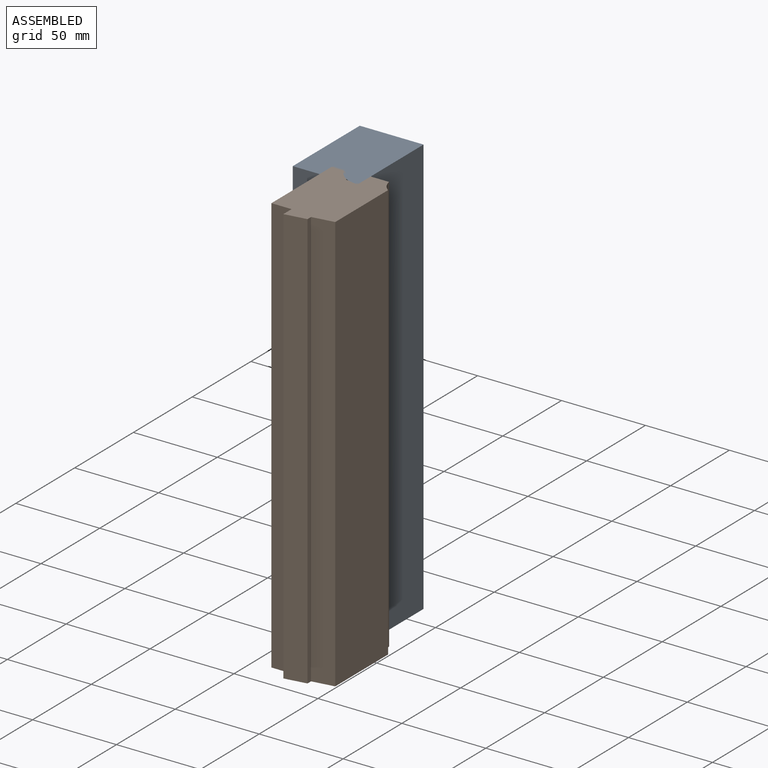
[diagram: assembled view]
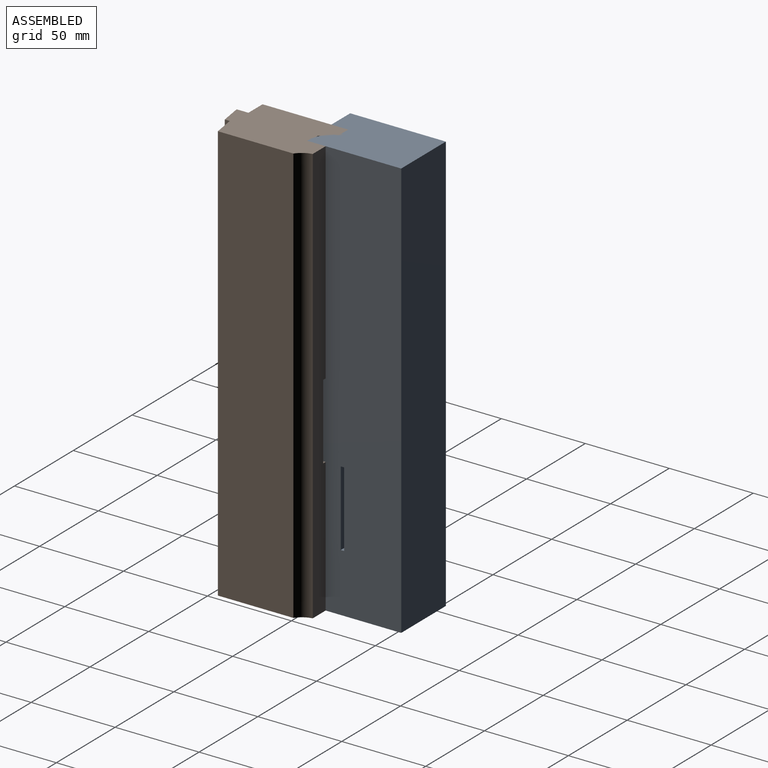
[diagram: assembled view, second angle]
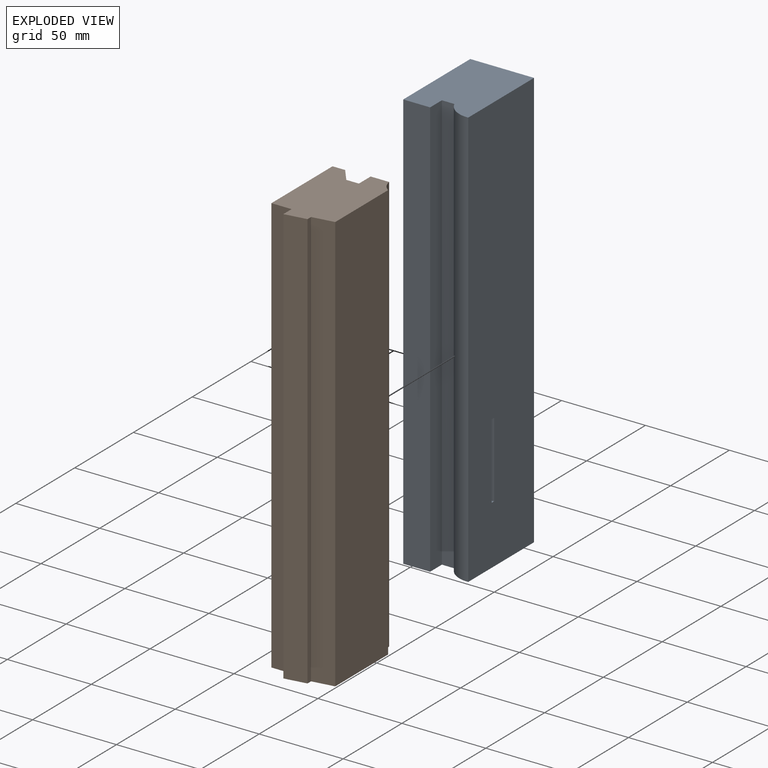
[diagram: exploded view]
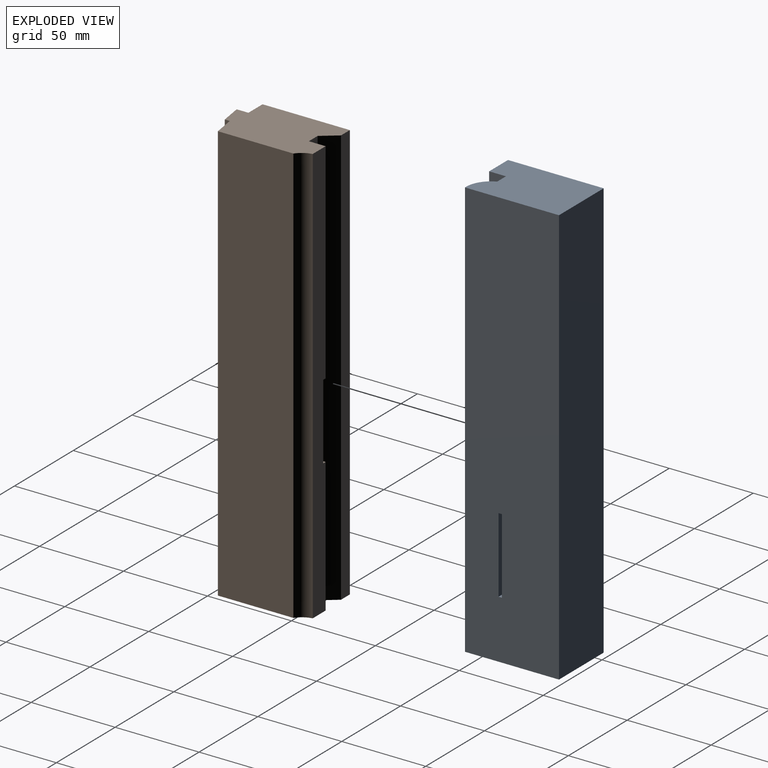
[diagram: exploded view, second angle]
FCSTD DOCUMENT  (FreeCAD 2022.709R28846 (Git))
Label: assembly
License: All rights reserved
LicenseURL: http://en.wikipedia.org/wiki/All_rights_reserved
objects: Part::FeaturePython×15, App::FeaturePython×15, App::Link×3, App::Part×2
note: 14 computed .brp shape members not serialized (recipe doc carries the construction recipe); baked Part::Feature solids carry a one-line shape summary decoded from their .brp
EXTERNAL_REF file=fensterrahmen_hinternute.FCStd obj=Body
EXTERNAL_REF file=blendrahmen_hinternute.FCStd obj=Body
EXTERNAL_REF file=fischband_assembly.FCStd obj=Assembly

FEATURE [App::Link] Link001  label="fensterrahmen"
  AutoLinkLabel = true
  AutoPlacement = true
  LinkPlacement = pos=(16,11,-3.85e-14) rot=(0,0,1;0rad)
  LinkedObject = -> <external fensterrahmen_hinternute.FCStd>#Body
  Placement = pos=(16,11,-3.85e-14) rot=(0,0,1;0rad)
  ShowElement = false
  SyncGroupVisibility = false
  TreeRank = 2
  _LinkVersion = 1
FEATURE [App::Link] Link  label="blendrahmen"
  AutoLinkLabel = true
  AutoPlacement = true
  LinkedObject = -> <external blendrahmen_hinternute.FCStd>#Body
  ShowElement = false
  SyncGroupVisibility = false
  TreeRank = 3
  _LinkVersion = 1
FEATURE [App::Link] Link002  label="Fischband"
  AutoLinkLabel = true
  AutoPlacement = true
  LinkPlacement = pos=(88.5,-0.5,125) rot=(0,1,0;3.14159rad)
  LinkedObject = -> <external fischband_assembly.FCStd>#Assembly
  Placement = pos=(88.5,-0.5,125) rot=(0,1,0;3.14159rad)
  ShowElement = false
  SyncGroupVisibility = false
  TreeRank = 23
  _LinkVersion = 1
FEATURE [Part::FeaturePython] Parts  # WARN: FeaturePython — macro-defined, semantics opaque (R4)
  Group = -> [Link,Link002,Link001]
  GroupMode = 0
  TreeRank = 0
  _LinkVersion = 1
FEATURE [App::FeaturePython] ElementLink  label="_Element007"  # WARN: FeaturePython — macro-defined, semantics opaque (R4)
  LinkTransform = true
  TreeRank = 87
  _LinkVersion = 1
FEATURE [App::Part] Part001
  ClaimAllChildren = false
  ExportMode = 1
  Origin = -> Origin001
  TreeRank = 123
  _GroupVersion = 1
FEATURE [App::Part] Part
  ClaimAllChildren = false
  ExportMode = 1
  Group = -> [Part001]
  Origin = -> Origin
  TreeRank = 118
  _ExportChildren = -> [Part001]
  _GroupVersion = 1
FEATURE [Part::FeaturePython] Assembly  # WARN: FeaturePython — macro-defined, semantics opaque (R4)
  AutoRelax = true
  BuildShape = 0
  Freeze = false
  Group = -> [Constraints,Elements,Parts]
  TreeRank = 0
  Verbose = false
  _LinkVersion = 1
  _SolverType = 1
  _Version = 1
FEATURE [App::FeaturePython] Constraints  # WARN: FeaturePython — macro-defined, semantics opaque (R4)
  Group = -> [Constraint003,Constraint004,Constraint,Constraint005]
  TreeRank = 0
  _LinkVersion = 1
  _Version = 1
FEATURE [App::FeaturePython] Elements  # WARN: FeaturePython — macro-defined, semantics opaque (R4)
  Group = -> [_Element008,_Element009,_Element010,_Element011,_Element012,_Element013,_Element015,_Element018,_Element019,_Element021,_Element,_Element022,_Element023]
  TreeRank = 0
  _LinkVersion = 1
FEATURE [Part::FeaturePython] _Element008  # link proxy (typed FeaturePython)
  Detach = false
  LinkTransform = true
  LinkedObject = -> Link [Pocket.Edge31]
  TreeRank = 41
  _LinkVersion = 1
  _Parent = -> Elements
FEATURE [Part::FeaturePython] _Element009  # link proxy (typed FeaturePython)
  Detach = false
  LinkTransform = true
  LinkedObject = -> Link002 [1.$Element002.]
  TreeRank = 43
  _LinkVersion = 1
  _Parent = -> Elements
FEATURE [Part::FeaturePython] _Element010  # link proxy (typed FeaturePython)
  Detach = false
  LinkTransform = true
  LinkedObject = -> Link [Pocket.Face14]
  TreeRank = 52
  _LinkVersion = 1
  _Parent = -> Elements
FEATURE [Part::FeaturePython] _Element011  # link proxy (typed FeaturePython)
  Detach = false
  LinkTransform = true
  LinkedObject = -> Link002 [1.$Element003.]
  TreeRank = 53
  _LinkVersion = 1
  _Parent = -> Elements
FEATURE [Part::FeaturePython] _Element012  # link proxy (typed FeaturePython)
  Detach = false
  LinkTransform = true
  LinkedObject = -> Link [Pocket.Edge28]
  TreeRank = 61
  _LinkVersion = 1
  _Parent = -> Elements
FEATURE [Part::FeaturePython] _Element013  # link proxy (typed FeaturePython)
  Detach = false
  LinkTransform = true
  LinkedObject = -> Link002 [1.$Element004.]
  TreeRank = 62
  _LinkVersion = 1
  _Parent = -> Elements
FEATURE [Part::FeaturePython] _Element015  # link proxy (typed FeaturePython)
  Detach = false
  LinkTransform = true
  LinkedObject = -> Link [Pocket.Edge21]
  TreeRank = 68
  _LinkVersion = 1
  _Parent = -> Elements
FEATURE [App::FeaturePython] Constraint003  label="PlaneCoincident"  # WARN: FeaturePython — macro-defined, semantics opaque (R4)
  Angle = 0
  AnglePitch = 0
  AngleRoll = 0
  Cascade = false
  Disabled = false
  Group = -> [ElementLink003,ElementLink004]
  LockAngle = false
  Multiply = false
  OffsetX = 0
  OffsetY = 0
  TreeRank = 75
  _ConstraintType = 35
  _LinkVersion = 1
  _Parent = -> Constraints
FEATURE [App::FeaturePython] ElementLink003  label="_Element010"  # link proxy (typed FeaturePython)
  LinkTransform = true
  LinkedObject = -> _Element010
  TreeRank = 76
  _LinkVersion = 1
  _Parent = -> Constraint003
FEATURE [App::FeaturePython] ElementLink004  label="_Element011"  # link proxy (typed FeaturePython)
  LinkTransform = true
  LinkedObject = -> _Element011
  TreeRank = 77
  _LinkVersion = 1
  _Parent = -> Constraint003
FEATURE [App::FeaturePython] Constraint004  label="AxialAlignment"  # WARN: FeaturePython — macro-defined, semantics opaque (R4)
  Angle = 0
  AnglePitch = 0
  AngleRoll = 0
  Disabled = false
  Group = -> [ElementLink005,ElementLink006]
  LockAngle = false
  Multiply = false
  TreeRank = 78
  _ConstraintType = 36
  _LinkVersion = 1
  _Parent = -> Constraints
FEATURE [App::FeaturePython] ElementLink005  label="_Element018"  # link proxy (typed FeaturePython)
  LinkTransform = true
  LinkedObject = -> _Element018
  TreeRank = 79
  _LinkVersion = 1
  _Parent = -> Constraint004
FEATURE [Part::FeaturePython] _Element018  # link proxy (typed FeaturePython)
  Detach = false
  LinkTransform = true
  LinkedObject = -> Link [Pocket.Edge27]
  TreeRank = 80
  _LinkVersion = 1
  _Parent = -> Elements
FEATURE [App::FeaturePython] ElementLink006  label="_Element019"  # link proxy (typed FeaturePython)
  LinkTransform = true
  LinkedObject = -> _Element019
  TreeRank = 81
  _LinkVersion = 1
  _Parent = -> Constraint004
FEATURE [Part::FeaturePython] _Element019  # link proxy (typed FeaturePython)
  Detach = false
  LinkTransform = true
  LinkedObject = -> Link002 [1.$Element006.]
  TreeRank = 82
  _LinkVersion = 1
  _Parent = -> Elements
FEATURE [Part::FeaturePython] _Element021  # link proxy (typed FeaturePython)
  Detach = false
  LinkTransform = true
  LinkedObject = -> Link002 [1.$Element007.]
  TreeRank = 95
  _LinkVersion = 1
  _Parent = -> Elements
FEATURE [App::FeaturePython] Constraint  label="PlaneCoincident001"  # WARN: FeaturePython — macro-defined, semantics opaque (R4)
  Angle = 0
  AnglePitch = 0
  AngleRoll = 0
  Cascade = false
  Disabled = false
  Group = -> [ElementLink007,ElementLink008]
  LockAngle = false
  Multiply = false
  OffsetX = 0
  OffsetY = 0
  TreeRank = 101
  _ConstraintType = 35
  _LinkVersion = 0
  _Parent = -> Constraints
FEATURE [App::FeaturePython] ElementLink007  label="_Element"  # link proxy (typed FeaturePython)
  LinkTransform = true
  LinkedObject = -> _Element
  TreeRank = 97
  _LinkVersion = 0
  _Parent = -> Constraint
FEATURE [Part::FeaturePython] _Element  # link proxy (typed FeaturePython)
  Detach = false
  LinkTransform = true
  LinkedObject = -> Link002 [1.$Element001.]
  TreeRank = 102
  _LinkVersion = 0
  _Parent = -> Elements
FEATURE [App::FeaturePython] ElementLink008  label="_Element022"  # link proxy (typed FeaturePython)
  LinkTransform = true
  LinkedObject = -> _Element022
  TreeRank = 99
  _LinkVersion = 0
  _Parent = -> Constraint
FEATURE [Part::FeaturePython] _Element022  # link proxy (typed FeaturePython)
  Detach = false
  LinkTransform = true
  LinkedObject = -> Link001 [Pocket.Face21]
  TreeRank = 103
  _LinkVersion = 0
  _Parent = -> Elements
FEATURE [Part::FeaturePython] _Element023  # link proxy (typed FeaturePython)
  Detach = false
  LinkTransform = true
  LinkedObject = -> Link001 [Pocket.Edge53]
  TreeRank = 109
  _LinkVersion = 0
  _Parent = -> Elements
FEATURE [App::FeaturePython] Constraint005  label="PointOnLine"  # WARN: FeaturePython — macro-defined, semantics opaque (R4)
  Disabled = false
  Group = -> [ElementLink009,ElementLink010]
  TreeRank = 113
  _ConstraintType = 4
  _LinkVersion = 0
  _Parent = -> Constraints
FEATURE [App::FeaturePython] ElementLink009  label="_Element023"  # link proxy (typed FeaturePython)
  LinkTransform = true
  LinkedObject = -> _Element023
  TreeRank = 111
  _LinkVersion = 0
  _Parent = -> Constraint005
FEATURE [App::FeaturePython] ElementLink010  label="_Element021"  # link proxy (typed FeaturePython)
  LinkTransform = true
  LinkedObject = -> _Element021
  TreeRank = 112
  _LinkVersion = 0
  _Parent = -> Constraint005

RESOLVED EXTERNAL PARTS (link-assembly join: the EXTERNAL_REF files above that resolve inside this repo's crawl, each included once):
---- part blendrahmen_hinternute.FCStd = doc fcstd_b0a4e677aa48 ----
FCSTD DOCUMENT  (FreeCAD 2022.709R28846 (Git))
Label: blendrahmen_hinternute
License: All rights reserved
LicenseURL: http://en.wikipedia.org/wiki/All_rights_reserved
objects: Sketcher::SketchObject×2, PartDesign::Pad×1, PartDesign::Pocket×1, PartDesign::Body×1
note: 9 computed .brp shape members not serialized (recipe doc carries the construction recipe); baked Part::Feature solids carry a one-line shape summary decoded from their .brp

FEATURE [Sketcher::SketchObject] Sketch
  ArcFitTolerance = 1e-06
  AttachmentSupport = -> [XY_Plane]
  FullyConstrained = true
  MapMode = 5
  Support = -> [XY_Plane]
  TreeRank = 13
  sketch-geometry (7):
    g0: LineSegment StartX=0 StartY=0 StartZ=0 EndX=0 EndY=57 EndZ=0
    g1: LineSegment StartX=0 StartY=57 StartZ=0 EndX=38 EndY=57 EndZ=0
    g2: LineSegment StartX=38 StartY=57 StartZ=0 EndX=38 EndY=1 EndZ=0
    g3: ArcOfCircle CenterX=37.2558 CenterY=15.9815 CenterZ=0 NormalX=0 NormalY=0 NormalZ=1 AngleXU=0 Radius=15 StartAngle=3.55177 EndAngle=4.76202
    g4: LineSegment StartX=23.5 StartY=10 StartZ=0 EndX=16 EndY=10 EndZ=0
    g5: LineSegment StartX=16 StartY=10 StartZ=0 EndX=16 EndY=0 EndZ=0
    g6: LineSegment StartX=16 StartY=0 StartZ=0 EndX=0 EndY=0 EndZ=0
  constraints (21):
    c: Coincident(g-1,g0)
    c: PointOnObject(g0,g-2)
    c: Coincident(g0,g1)
    c: Horizontal(g1)
    c: Coincident(g1,g2)
    c: Vertical(g2)
    c: Horizontal(g4)
    c: Coincident(g4,g5)
    c: PointOnObject(g5,g-1)
    c: Vertical(g5)
    c: Coincident(g5,g6)
    c: Coincident(g6,g0)
    c: DistanceY(g0,g0) = 57
    c: DistanceX(g1,g1) = 38
    c: Coincident(g3,g4)
    c: DistanceX(g6,g6) = 16
    c: DistanceY(g5,g5) = 10
    c: DistanceX(g4,g4) = 7.5
    c: Radius(g3) = 15
    c: Coincident(g2,g3)
    c: DistanceY(g0,g2) = 1
FEATURE [PartDesign::Pad] Pad
  ClaimChildren = false
  Direction = (1,1,1)
  Fit = 0
  FitJoin = 0
  InnerFit = 0
  InnerFitJoin = 0
  InnerTaperAngle = 0
  InnerTaperAngleRev = 0
  Length = 250
  Length2 = 100
  Linearize = true
  NewSolid = false
  Profile = -> Sketch
  Suppress = false
  TreeRank = 14
  Type = 0
  _ProfileBasedVersion = 1
FEATURE [Sketcher::SketchObject] Sketch001
  ArcFitTolerance = 1e-06
  AttachmentSupport = -> [Pad]
  FullyConstrained = true
  MapMode = 5
  Placement = pos=(38,0,0) rot=(0.57735,0.57735,0.57735;2.0944rad)
  Support = -> [Pad]
  TreeRank = 15
  sketch-geometry (4):
    g0: LineSegment StartX=21 StartY=80 StartZ=0 EndX=23 EndY=80 EndZ=0
    g1: LineSegment StartX=23 StartY=80 StartZ=0 EndX=23 EndY=35 EndZ=0
    g2: LineSegment StartX=23 StartY=35 StartZ=0 EndX=21 EndY=35 EndZ=0
    g3: LineSegment StartX=21 StartY=35 StartZ=0 EndX=21 EndY=80 EndZ=0
  constraints (12):
    c: Coincident(g0,g1)
    c: Coincident(g1,g2)
    c: Coincident(g2,g3)
    c: Coincident(g3,g0)
    c: Horizontal(g0)
    c: Horizontal(g2)
    c: Vertical(g1)
    c: Vertical(g3)
    c: DistanceY(g1,g1) = 45
    c: DistanceX(g2,g2) = 2
    c: DistanceY(g-1,g2) = 35
    c: DistanceX(g-1,g2) = 21
FEATURE [PartDesign::Pocket] Pocket
  BaseFeature = -> Pad
  ClaimChildren = false
  Fit = 0
  FitJoin = 0
  InnerFit = 0
  InnerFitJoin = 0
  InnerTaperAngle = 0
  InnerTaperAngleRev = 0
  Length = 20
  Length2 = 100
  Linearize = true
  NewSolid = false
  Profile = -> Sketch001
  Refine = true
  Suppress = false
  TreeRank = 16
  Type = 0
  _ProfileBasedVersion = 1
FEATURE [PartDesign::Body] Body
  AutoGroupSolids = false
  ClaimAllChildren = false
  ExportMode = 0
  Group = -> [Sketch,Pad,Sketch001,Pocket]
  Origin = -> Origin
  Tip = -> Pocket
  TreeRank = 12
  _ExportChildren = -> [Pad,Pocket]
  _GroupVersion = 1
---- part fensterrahmen_hinternute.FCStd = doc fcstd_d807360cf7fc ----
FCSTD DOCUMENT  (FreeCAD 2022.709R28846 (Git))
Label: fensterrahmen_hinternute
License: All rights reserved
LicenseURL: http://en.wikipedia.org/wiki/All_rights_reserved
objects: Sketcher::SketchObject×2, PartDesign::Pad×1, PartDesign::Pocket×1, PartDesign::Body×1
note: 9 computed .brp shape members not serialized (recipe doc carries the construction recipe); baked Part::Feature solids carry a one-line shape summary decoded from their .brp

FEATURE [Sketcher::SketchObject] Sketch
  ArcFitTolerance = 1e-06
  AttachmentSupport = -> [XY_Plane]
  FullyConstrained = true
  MapMode = 5
  Support = -> [XY_Plane]
  TreeRank = 13
  sketch-geometry (13):
    g0: LineSegment StartX=0 StartY=0 StartZ=0 EndX=7.5 EndY=0 EndZ=0
    g1: LineSegment StartX=7.5 StartY=0 StartZ=0 EndX=14.5 EndY=-9 EndZ=0
    g2: LineSegment StartX=14.5 StartY=-9 StartZ=0 EndX=22 EndY=-9 EndZ=0
    g3: LineSegment StartX=22 StartY=-9 StartZ=0 EndX=22 EndY=1 EndZ=0
    g4: LineSegment StartX=22 StartY=1 StartZ=0 EndX=33 EndY=1 EndZ=0
    g5: ArcOfCircle CenterX=44.8568 CenterY=2.84803 CenterZ=0 NormalX=0 NormalY=0 NormalZ=1 AngleXU=0 Radius=12 StartAngle=3.29621 EndAngle=4.10417
    g6: LineSegment StartX=38 StartY=-7 StartZ=0 EndX=38 EndY=-52 EndZ=0
    g7: LineSegment StartX=38 StartY=-52 StartZ=0 EndX=25 EndY=-54 EndZ=0
    g8: LineSegment StartX=25 StartY=-54 StartZ=0 EndX=25 EndY=-57 EndZ=0
    g9: LineSegment StartX=25 StartY=-57 StartZ=0 EndX=12 EndY=-59 EndZ=0
    g10: LineSegment StartX=12 StartY=-59 StartZ=0 EndX=12 EndY=-52 EndZ=0
    g11: LineSegment StartX=12 StartY=-52 StartZ=0 EndX=0 EndY=-52 EndZ=0
    g12: LineSegment StartX=0 StartY=-52 StartZ=0 EndX=0 EndY=0 EndZ=0
  constraints (39):
    c: Coincident(g-1,g0)
    c: PointOnObject(g0,g-1)
    c: Coincident(g0,g1)
    c: Coincident(g1,g2)
    c: Horizontal(g2)
    c: Coincident(g2,g3)
    c: Vertical(g3)
    c: Coincident(g3,g4)
    c: Horizontal(g4)
    c: Coincident(g5,g6)
    c: Vertical(g6)
    c: Coincident(g6,g7)
    c: Coincident(g7,g8)
    c: Vertical(g8)
    c: Coincident(g8,g9)
    c: Coincident(g9,g10)
    c: Vertical(g10)
    c: Coincident(g10,g11)
    c: PointOnObject(g11,g-2)
    c: Horizontal(g11)
    c: Coincident(g11,g12)
    c: Coincident(g12,g0)
    c: DistanceX(g11,g11) = 12
    c: DistanceX(g9,g9) = 13
    c: DistanceX(g0,g0) = 7.5
    c: Equal(g2,g0)
    c: DistanceY(g0,g3) = 1
    c: Radius(g5) = 12
    c: DistanceX(g4,g5) = 5
    c: Coincident(g5,g4)
    c: DistanceY(g5,g4) = 8
    c: DistanceY(g6,g5) = 45
    c: DistanceY(g7,g6) = 2
    c: DistanceY(g8,g7) = 3
    c: DistanceY(g9,g8) = 2
    c: DistanceX(g0,g3) = 22
    c: DistanceX(g7,g6) = 13
    c: DistanceY(g9,g10) = 7
    c: DistanceY(g2,g3) = 10
FEATURE [PartDesign::Pad] Pad
  ClaimChildren = false
  Direction = (1,1,1)
  Fit = 0
  FitJoin = 0
  InnerFit = 0
  InnerFitJoin = 0
  InnerTaperAngle = 0
  InnerTaperAngleRev = 0
  Length = 250
  Length2 = 100
  Linearize = true
  NewSolid = false
  Profile = -> Sketch
  Suppress = false
  TreeRank = 14
  Type = 0
  _ProfileBasedVersion = 1
FEATURE [Sketcher::SketchObject] Sketch001
  ArcFitTolerance = 1e-06
  AttachmentSupport = -> [Pad]
  ExternalGeometry = -> [Pad]
  FullyConstrained = true
  MapMode = 5
  Placement = pos=(0,1,0) rot=(0,0.707107,0.707107;3.14159rad)
  Support = -> [Pad]
  TreeRank = 15
  sketch-geometry (4):
    g0: LineSegment StartX=-22 StartY=125 StartZ=0 EndX=-24 EndY=125 EndZ=0
    g1: LineSegment StartX=-24 StartY=125 StartZ=0 EndX=-24 EndY=80 EndZ=0
    g2: LineSegment StartX=-24 StartY=80 StartZ=0 EndX=-22 EndY=80 EndZ=0
    g3: LineSegment StartX=-22 StartY=80 StartZ=0 EndX=-22 EndY=125 EndZ=0
  constraints (12):
    c: Coincident(g0,g1)
    c: Coincident(g1,g2)
    c: Coincident(g2,g3)
    c: Coincident(g3,g0)
    c: Horizontal(g0)
    c: Horizontal(g2)
    c: Vertical(g1)
    c: Vertical(g3)
    c: DistanceY(g-1,g0) = 125
    c: DistanceX(g2,g2) = 2
    c: DistanceY(g1,g1) = 45
    c: PointOnObject(g2,g-3)
FEATURE [PartDesign::Pocket] Pocket
  BaseFeature = -> Pad
  ClaimChildren = false
  Fit = 0
  FitJoin = 0
  InnerFit = 0
  InnerFitJoin = 0
  InnerTaperAngle = 0
  InnerTaperAngleRev = 0
  Length = 20
  Length2 = 100
  Linearize = true
  NewSolid = false
  Profile = -> Sketch001
  Refine = true
  Suppress = false
  TreeRank = 16
  Type = 0
  _ProfileBasedVersion = 1
FEATURE [PartDesign::Body] Body
  AutoGroupSolids = false
  ClaimAllChildren = false
  ExportMode = 0
  Group = -> [Sketch,Pad,Sketch001,Pocket]
  Origin = -> Origin
  Tip = -> Pocket
  TreeRank = 12
  _ExportChildren = -> [Pad,Pocket]
  _GroupVersion = 1
---- part fischband_assembly.FCStd = doc fcstd_483ec6297d1b ----
FCSTD DOCUMENT  (FreeCAD 2022.709R28846 (Git))
Label: fischband_assembly
License: All rights reserved
LicenseURL: http://en.wikipedia.org/wiki/All_rights_reserved
objects: Part::FeaturePython×21, App::FeaturePython×14, App::Link×5
note: 20 computed .brp shape members not serialized (recipe doc carries the construction recipe); baked Part::Feature solids carry a one-line shape summary decoded from their .brp
EXTERNAL_REF file=fischband_fluegel.FCStd obj=Body
EXTERNAL_REF file=fischband_pin.FCStd obj=Body
EXTERNAL_REF file=fischband_zierelement.FCStd obj=Body

FEATURE [App::Link] Link  label="band_rahmen"
  AutoLinkLabel = true
  AutoPlacement = true
  LinkPlacement = pos=(45,18,0) rot=(0,0,1;4.71239rad)
  LinkedObject = -> <external fischband_fluegel.FCStd>#Body
  Placement = pos=(45,18,0) rot=(0,0,1;4.71239rad)
  ShowElement = false
  SyncGroupVisibility = false
  TreeRank = 1
  _LinkVersion = 1
FEATURE [App::Link] Link001  label="Link001(Body)"
  AutoLinkLabel = true
  AutoPlacement = true
  LinkPlacement = pos=(45,18,0) rot=(0,0,1;0rad)
  LinkedObject = -> <external fischband_pin.FCStd>#Body
  Placement = pos=(45,18,0) rot=(0,0,1;0rad)
  ShowElement = false
  SyncGroupVisibility = false
  TreeRank = 2
  _LinkVersion = 1
FEATURE [App::Link] Link002  label="band_fenster"
  AutoLinkLabel = true
  AutoPlacement = true
  LinkPlacement = pos=(45,18,45) rot=(0,0,1;0rad)
  LinkedObject = -> <external fischband_fluegel.FCStd>#Body
  Placement = pos=(45,18,45) rot=(0,0,1;0rad)
  ShowElement = false
  SyncGroupVisibility = false
  TreeRank = 32
  _LinkVersion = 1
FEATURE [App::Link] Link003  label="zierelement_unten"
  AutoLinkLabel = false
  AutoPlacement = true
  LinkPlacement = pos=(45,18,0) rot=(0,0,1;0rad)
  LinkedObject = -> <external fischband_zierelement.FCStd>#Body
  Placement = pos=(45,18,0) rot=(0,0,1;0rad)
  ShowElement = false
  SyncGroupVisibility = false
  TreeRank = 52
  _LinkOwner = 4058
  _LinkVersion = 1
FEATURE [App::Link] Link004  label="zierelement_oben"
  AutoLinkLabel = true
  AutoPlacement = true
  LinkPlacement = pos=(45,18,90) rot=(-1,0,0;3.14159rad)
  LinkedObject = -> <external fischband_zierelement.FCStd>#Body
  Placement = pos=(45,18,90) rot=(-1,0,0;3.14159rad)
  ShowElement = false
  SyncGroupVisibility = false
  TreeRank = 72
  _LinkVersion = 1
FEATURE [Part::FeaturePython] Parts  # WARN: FeaturePython — macro-defined, semantics opaque (R4)
  Group = -> [Link001,Link,Link002,Link003,Link004]
  GroupMode = 0
  TreeRank = 0
  _LinkVersion = 1
FEATURE [Part::FeaturePython] Assembly  # WARN: FeaturePython — macro-defined, semantics opaque (R4)
  AutoRelax = true
  BuildShape = 0
  Freeze = false
  Group = -> [Constraints,Elements,Parts]
  TreeRank = 0
  Verbose = false
  _LinkVersion = 1
  _SolverType = 1
  _Version = 1
FEATURE [App::FeaturePython] Constraints  # WARN: FeaturePython — macro-defined, semantics opaque (R4)
  Group = -> [Constraint001,Constraint002,Constraint003,Constraint004]
  TreeRank = 0
  _LinkVersion = 1
  _Version = 1
FEATURE [App::FeaturePython] Elements  # WARN: FeaturePython — macro-defined, semantics opaque (R4)
  Group = -> [_Element001,_Element002,_Element004,_Element005,_Element,_Element006,_Element007,_Element008,_Element009,_Element010,_Element011,Element,Element001,Element002,Element003,Element004,Element005,Element006,Element007]
  TreeRank = 0
  _LinkVersion = 1
FEATURE [Part::FeaturePython] _Element001  # link proxy (typed FeaturePython)
  Detach = false
  LinkTransform = true
  LinkedObject = -> Link001 [Pad.Edge2]
  TreeRank = 14
  _LinkVersion = 1
  _Parent = -> Elements
FEATURE [Part::FeaturePython] _Element002  # link proxy (typed FeaturePython)
  Detach = false
  LinkTransform = true
  LinkedObject = -> Link [Pad.Edge14]
  TreeRank = 15
  _LinkVersion = 1
  _Parent = -> Elements
FEATURE [Part::FeaturePython] _Element004  # WARN: FeaturePython — macro-defined, semantics opaque (R4)
  Detach = false
  LinkTransform = true
  TreeRank = 31
  _LinkVersion = 1
  _Parent = -> Elements
FEATURE [Part::FeaturePython] _Element005  # link proxy (typed FeaturePython)
  Detach = false
  LinkTransform = true
  LinkedObject = -> Link002 [Pad.Edge15]
  TreeRank = 38
  _LinkVersion = 1
  _Parent = -> Elements
FEATURE [Part::FeaturePython] _Element  # link proxy (typed FeaturePython)
  Detach = false
  LinkTransform = true
  LinkedObject = -> Link002 [Pad.Edge14]
  TreeRank = 55
  _LinkVersion = 1
  _Parent = -> Elements
FEATURE [Part::FeaturePython] _Element006  # link proxy (typed FeaturePython)
  Detach = false
  LinkTransform = true
  LinkedObject = -> Link001 [Pad.Edge3]
  TreeRank = 57
  _LinkVersion = 1
  _Parent = -> Elements
FEATURE [Part::FeaturePython] _Element007  # link proxy (typed FeaturePython)
  Detach = false
  LinkTransform = true
  LinkedObject = -> Link001 [Pad.Face1]
  TreeRank = 60
  _LinkVersion = 1
  _Parent = -> Elements
FEATURE [App::FeaturePython] Constraint001  label="PlaneCoincident"  # WARN: FeaturePython — macro-defined, semantics opaque (R4)
  Angle = 0
  AnglePitch = 0
  AngleRoll = 0
  Cascade = false
  Disabled = false
  Group = -> [ElementLink001,ElementLink002]
  LockAngle = false
  Multiply = false
  OffsetX = 0
  OffsetY = 0
  TreeRank = 61
  _ConstraintType = 35
  _LinkVersion = 1
  _Parent = -> Constraints
FEATURE [App::FeaturePython] ElementLink001  label="_Element001"  # link proxy (typed FeaturePython)
  LinkTransform = true
  LinkedObject = -> _Element001
  TreeRank = 62
  _LinkVersion = 1
  _Parent = -> Constraint001
FEATURE [App::FeaturePython] ElementLink002  label="_Element002"  # link proxy (typed FeaturePython)
  LinkTransform = true
  LinkedObject = -> _Element002
  TreeRank = 63
  _LinkVersion = 1
  _Parent = -> Constraint001
FEATURE [App::FeaturePython] Constraint002  label="PlaneCoincident001"  # WARN: FeaturePython — macro-defined, semantics opaque (R4)
  Angle = 0
  AnglePitch = 0
  AngleRoll = 0
  Cascade = false
  Disabled = false
  Group = -> [ElementLink003,ElementLink004]
  LockAngle = false
  Multiply = false
  OffsetX = 0
  OffsetY = 0
  TreeRank = 64
  _ConstraintType = 35
  _LinkVersion = 1
  _Parent = -> Constraints
FEATURE [App::FeaturePython] ElementLink003  label="_Element005"  # link proxy (typed FeaturePython)
  LinkTransform = true
  LinkedObject = -> _Element005
  TreeRank = 65
  _LinkVersion = 1
  _Parent = -> Constraint002
FEATURE [App::FeaturePython] ElementLink004  label="_Element006"  # link proxy (typed FeaturePython)
  LinkTransform = true
  LinkedObject = -> _Element006
  TreeRank = 66
  _LinkVersion = 1
  _Parent = -> Constraint002
FEATURE [App::FeaturePython] Constraint003  label="PlaneCoincident002"  # WARN: FeaturePython — macro-defined, semantics opaque (R4)
  Angle = 0
  AnglePitch = 0
  AngleRoll = 0
  Cascade = false
  Disabled = false
  Group = -> [ElementLink005,ElementLink006]
  LockAngle = false
  Multiply = false
  OffsetX = 0
  OffsetY = 0
  TreeRank = 67
  _ConstraintType = 35
  _LinkVersion = 1
  _Parent = -> Constraints
FEATURE [App::FeaturePython] ElementLink005  label="_Element008"  # link proxy (typed FeaturePython)
  LinkTransform = true
  LinkedObject = -> _Element008
  TreeRank = 68
  _LinkVersion = 1
  _Parent = -> Constraint003
FEATURE [Part::FeaturePython] _Element008  # link proxy (typed FeaturePython)
  Detach = false
  LinkTransform = true
  LinkedObject = -> Link [Pad.Edge6]
  TreeRank = 69
  _LinkVersion = 1
  _Parent = -> Elements
FEATURE [App::FeaturePython] ElementLink006  label="_Element009"  # link proxy (typed FeaturePython)
  LinkTransform = true
  LinkedObject = -> _Element009
  TreeRank = 70
  _LinkVersion = 1
  _Parent = -> Constraint003
FEATURE [Part::FeaturePython] _Element009  # link proxy (typed FeaturePython)
  Detach = false
  LinkTransform = true
  LinkedObject = -> Link003 [Revolution.Edge2]
  TreeRank = 71
  _LinkVersion = 1
  _Parent = -> Elements
FEATURE [App::FeaturePython] Constraint004  label="PlaneCoincident003"  # WARN: FeaturePython — macro-defined, semantics opaque (R4)
  Angle = 0
  AnglePitch = 0
  AngleRoll = 0
  Cascade = false
  Disabled = false
  Group = -> [ElementLink007,ElementLink008]
  LockAngle = false
  Multiply = false
  OffsetX = 0
  OffsetY = 0
  TreeRank = 73
  _ConstraintType = 35
  _LinkVersion = 1
  _Parent = -> Constraints
FEATURE [App::FeaturePython] ElementLink007  label="_Element010"  # link proxy (typed FeaturePython)
  LinkTransform = true
  LinkedObject = -> _Element010
  TreeRank = 74
  _LinkVersion = 1
  _Parent = -> Constraint004
FEATURE [Part::FeaturePython] _Element010  # link proxy (typed FeaturePython)
  Detach = false
  LinkTransform = true
  LinkedObject = -> Link004 [Revolution.Edge2]
  TreeRank = 75
  _LinkVersion = 1
  _Parent = -> Elements
FEATURE [App::FeaturePython] ElementLink008  label="_Element011"  # link proxy (typed FeaturePython)
  LinkTransform = true
  LinkedObject = -> _Element011
  TreeRank = 76
  _LinkVersion = 1
  _Parent = -> Constraint004
FEATURE [Part::FeaturePython] _Element011  # link proxy (typed FeaturePython)
  Detach = false
  LinkTransform = true
  LinkedObject = -> Link002 [Pad.Edge7]
  TreeRank = 77
  _LinkVersion = 1
  _Parent = -> Elements
FEATURE [Part::FeaturePython] Element  # link proxy (typed FeaturePython)
  Detach = false
  LinkTransform = true
  LinkedObject = -> Link [Pad.Face3]
  TreeRank = 78
  _LinkVersion = 1
  _Parent = -> Elements
FEATURE [Part::FeaturePython] Element001  # link proxy (typed FeaturePython)
  Detach = false
  LinkTransform = true
  LinkedObject = -> Link [Pad.Face4]
  TreeRank = 79
  _LinkVersion = 1
  _Parent = -> Elements
FEATURE [Part::FeaturePython] Element002  # link proxy (typed FeaturePython)
  Detach = false
  LinkTransform = true
  LinkedObject = -> Link002 [Pad.Edge3]
  TreeRank = 80
  _LinkVersion = 1
  _Parent = -> Elements
FEATURE [Part::FeaturePython] Element003  # link proxy (typed FeaturePython)
  Detach = false
  LinkTransform = true
  LinkedObject = -> Link002 [Pad.Face4]
  TreeRank = 81
  _LinkVersion = 1
  _Parent = -> Elements
FEATURE [Part::FeaturePython] Element004  # link proxy (typed FeaturePython)
  Detach = false
  LinkTransform = true
  LinkedObject = -> Link002 [Pad.Edge2]
  TreeRank = 82
  _LinkVersion = 1
  _Parent = -> Elements
FEATURE [Part::FeaturePython] Element005  # link proxy (typed FeaturePython)
  Detach = false
  LinkTransform = true
  LinkedObject = -> Link [Pad.Edge8]
  TreeRank = 83
  _LinkVersion = 1
  _Parent = -> Elements
FEATURE [Part::FeaturePython] Element006  # link proxy (typed FeaturePython)
  Detach = false
  LinkTransform = true
  LinkedObject = -> Link002 [Pad.Edge9]
  TreeRank = 84
  _LinkVersion = 1
  _Parent = -> Elements
FEATURE [Part::FeaturePython] Element007  # link proxy (typed FeaturePython)
  Detach = false
  LinkTransform = true
  LinkedObject = -> Link [Pad.Edge9]
  TreeRank = 85
  _LinkVersion = 1
  _Parent = -> Elements
